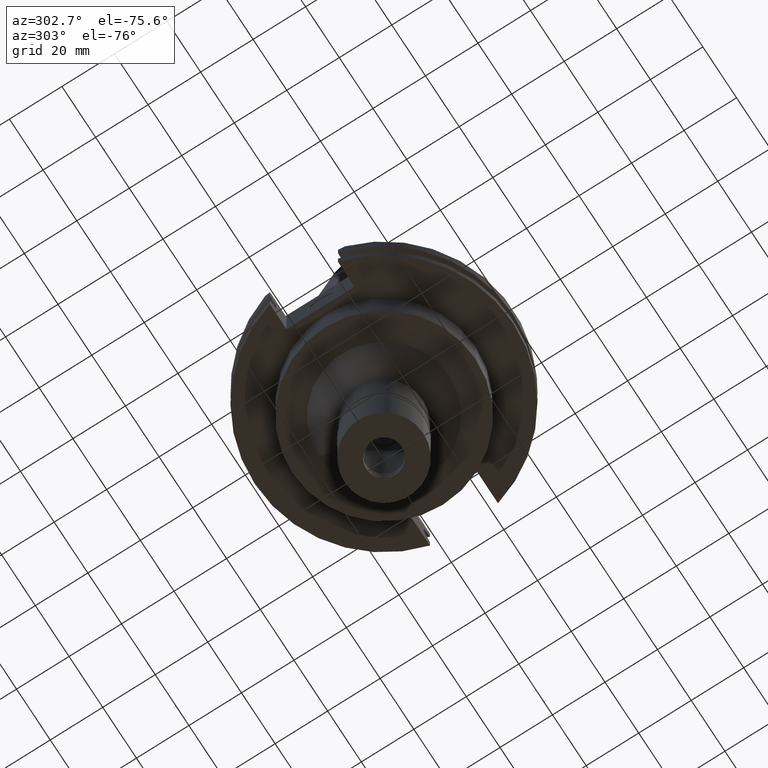
[diagram: clean part render]
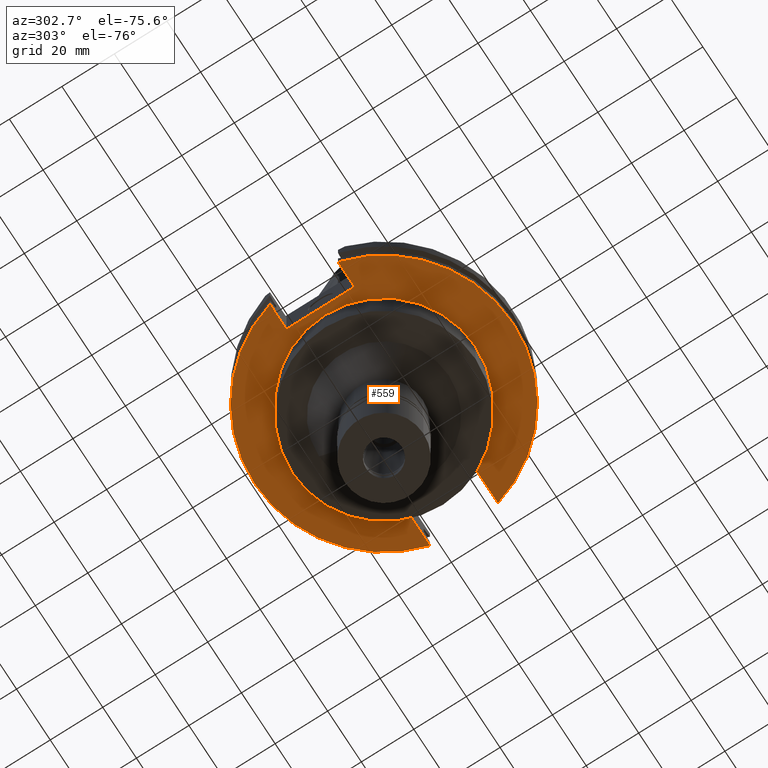
[diagram: same view with one face highlighted and labeled with its STEP entity id]
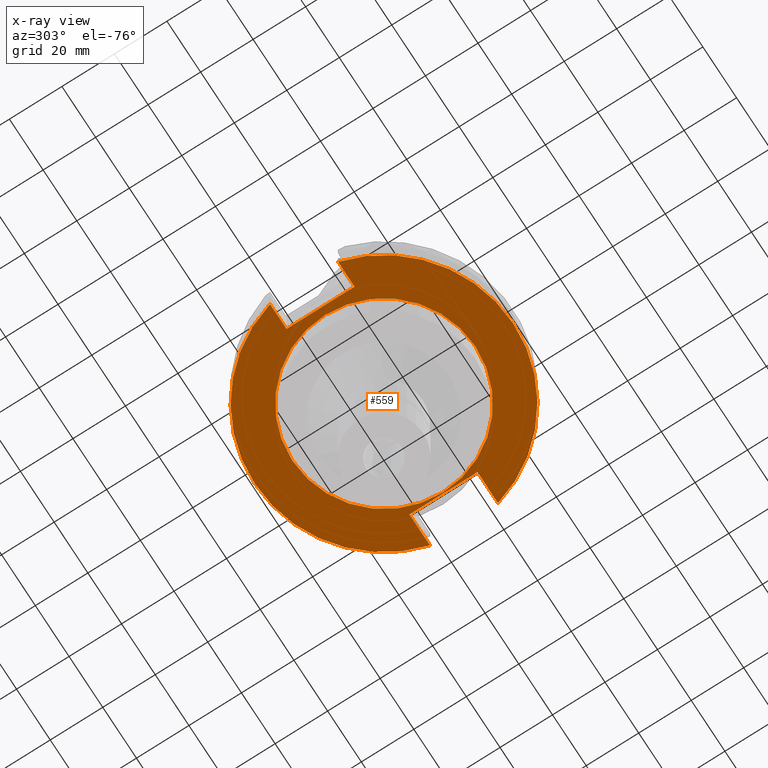
[diagram: x-ray of the same camera — body ghosted, the highlighted face saturated]
A machine part, auxiliary view. The second image highlights one B-rep face of the part: STEP entity #559.
The next image is the same camera in x-ray: the body ghosted, the highlighted face saturated — about 0% of this face is hidden behind the body in this view.
In plain terms, the highlighted planar face has unit normal (0, 0, -1).
Its self-contained STEP definition (entity closure, byte-faithful):
#4 = AXIS2_PLACEMENT_3D ( 'NONE', #2580, #527, #2837 ) ;
#47 = VERTEX_POINT ( 'NONE', #72 ) ;
#72 = CARTESIAN_POINT ( 'NONE',  ( -37.67999999999999972, -12.95500000000000007, -19.05000000000000071 ) ) ;
#91 = DIRECTION ( 'NONE',  ( 0.0000000000000000000, 0.0000000000000000000, 1.000000000000000000 ) ) ;
#104 = ORIENTED_EDGE ( 'NONE', *, *, #950, .F. ) ;
#116 = DIRECTION ( 'NONE',  ( 0.0000000000000000000, -1.000000000000000000, 0.0000000000000000000 ) ) ;
#148 = EDGE_CURVE ( 'NONE', #3276, #2465, #1308, .T. ) ;
#183 = DIRECTION ( 'NONE',  ( 0.0000000000000000000, 1.000000000000000000, 0.0000000000000000000 ) ) ;
#218 = ORIENTED_EDGE ( 'NONE', *, *, #270, .T. ) ;
#270 = EDGE_CURVE ( 'NONE', #2604, #3022, #947, .T. ) ;
#332 = ORIENTED_EDGE ( 'NONE', *, *, #148, .F. ) ;
#335 = ORIENTED_EDGE ( 'NONE', *, *, #2107, .F. ) ;
#366 = EDGE_CURVE ( 'NONE', #47, #3058, #1005, .T. ) ;
#379 = EDGE_CURVE ( 'NONE', #1768, #1763, #1083, .T. ) ;
#414 = VECTOR ( 'NONE', #3038, 1000.000000000000000 ) ;
#425 = DIRECTION ( 'NONE',  ( 0.0000000000000000000, -1.000000000000000000, 0.0000000000000000000 ) ) ;
#527 = DIRECTION ( 'NONE',  ( 0.0000000000000000000, 0.0000000000000000000, -1.000000000000000000 ) ) ;
#528 = CARTESIAN_POINT ( 'NONE',  ( 35.27000000000000313, -12.95500000000000007, -19.05000000000000071 ) ) ;
#559 = ADVANCED_FACE ( 'NONE', ( #2114, #2567 ), #1843, .T. ) ;
#588 = ORIENTED_EDGE ( 'NONE', *, *, #3147, .F. ) ;
#602 = CARTESIAN_POINT ( 'NONE',  ( -47.47671146204000081, -12.95500000000000007, -19.05000000000000071 ) ) ;
#656 = VECTOR ( 'NONE', #183, 1000.000000000000000 ) ;
#727 = CARTESIAN_POINT ( 'NONE',  ( -47.47671146204000081, 12.95500000000000007, -19.05000000000000071 ) ) ;
#793 = VECTOR ( 'NONE', #3091, 1000.000000000000000 ) ;
#799 = EDGE_LOOP ( 'NONE', ( #2368, #104, #588, #218, #1829, #332, #335, #2924 ) ) ;
#849 = CARTESIAN_POINT ( 'NONE',  ( 0.0000000000000000000, 2.579412320703999880E-14, -19.05000000000000071 ) ) ;
#883 = ORIENTED_EDGE ( 'NONE', *, *, #379, .F. ) ;
#947 = LINE ( 'NONE', #2455, #1090 ) ;
#950 = EDGE_CURVE ( 'NONE', #1891, #1399, #2985, .T. ) ;
#958 = DIRECTION ( 'NONE',  ( 0.0000000000000000000, 0.0000000000000000000, 1.000000000000000000 ) ) ;
#986 = AXIS2_PLACEMENT_3D ( 'NONE', #1735, #994, #1038 ) ;
#994 = DIRECTION ( 'NONE',  ( 0.0000000000000000000, 0.0000000000000000000, -1.000000000000000000 ) ) ;
#1005 = LINE ( 'NONE', #2785, #656 ) ;
#1038 = DIRECTION ( 'NONE',  ( 0.0000000000000000000, 1.000000000000000000, 0.0000000000000000000 ) ) ;
#1073 = CARTESIAN_POINT ( 'NONE',  ( 0.0000000000000000000, 2.579412320703999880E-14, -19.05000000000000071 ) ) ;
#1083 = CIRCLE ( 'NONE', #986, 34.92499999999999716 ) ;
#1090 = VECTOR ( 'NONE', #425, 1000.000000000000000 ) ;
#1242 = CIRCLE ( 'NONE', #2136, 34.92499999999999716 ) ;
#1257 = AXIS2_PLACEMENT_3D ( 'NONE', #1073, #91, #1338 ) ;
#1307 = DIRECTION ( 'NONE',  ( -1.000000000000000000, 1.813217472294999948E-14, 0.0000000000000000000 ) ) ;
#1308 = CIRCLE ( 'NONE', #1257, 49.21249999999999858 ) ;
#1338 = DIRECTION ( 'NONE',  ( 0.0000000000000000000, -1.000000000000000000, 0.0000000000000000000 ) ) ;
#1399 = VERTEX_POINT ( 'NONE', #727 ) ;
#1475 = CARTESIAN_POINT ( 'NONE',  ( 0.0000000000000000000, 2.579412320703999880E-14, -19.05000000000000071 ) ) ;
#1534 = CARTESIAN_POINT ( 'NONE',  ( 35.27000000000000313, 12.95500000000000007, -19.05000000000000071 ) ) ;
#1634 = CARTESIAN_POINT ( 'NONE',  ( -37.67999999999999972, -12.95500000000000007, -19.05000000000000071 ) ) ;
#1649 = LINE ( 'NONE', #3121, #2932 ) ;
#1678 = CARTESIAN_POINT ( 'NONE',  ( 35.27000000000000313, -12.95500000000000007, -19.05000000000000071 ) ) ;
#1686 = CARTESIAN_POINT ( 'NONE',  ( 47.47671146204000081, 12.95500000000000007, -19.05000000000000071 ) ) ;
#1735 = CARTESIAN_POINT ( 'NONE',  ( 0.0000000000000000000, 2.579412320703999880E-14, -19.05000000000000071 ) ) ;
#1763 = VERTEX_POINT ( 'NONE', #2381 ) ;
#1765 = VECTOR ( 'NONE', #1999, 1000.000000000000000 ) ;
#1766 = LINE ( 'NONE', #528, #1765 ) ;
#1768 = VERTEX_POINT ( 'NONE', #2912 ) ;
#1778 = DIRECTION ( 'NONE',  ( 0.0000000000000000000, 1.000000000000000000, 0.0000000000000000000 ) ) ;
#1789 = ORIENTED_EDGE ( 'NONE', *, *, #2816, .F. ) ;
#1829 = ORIENTED_EDGE ( 'NONE', *, *, #1990, .T. ) ;
#1843 = PLANE ( 'NONE',  #4 ) ;
#1891 = VERTEX_POINT ( 'NONE', #1686 ) ;
#1990 = EDGE_CURVE ( 'NONE', #3022, #2465, #1766, .T. ) ;
#1999 = DIRECTION ( 'NONE',  ( 1.000000000000000000, -1.411572756165000194E-14, 0.0000000000000000000 ) ) ;
#2018 = CARTESIAN_POINT ( 'NONE',  ( 35.27000000000000313, 12.95500000000000007, -19.05000000000000071 ) ) ;
#2019 = AXIS2_PLACEMENT_3D ( 'NONE', #1475, #958, #1778 ) ;
#2098 = LINE ( 'NONE', #1634, #793 ) ;
#2107 = EDGE_CURVE ( 'NONE', #47, #3276, #2098, .T. ) ;
#2114 = FACE_OUTER_BOUND ( 'NONE', #799, .T. ) ;
#2118 = EDGE_CURVE ( 'NONE', #3058, #1399, #1649, .T. ) ;
#2136 = AXIS2_PLACEMENT_3D ( 'NONE', #849, #2411, #116 ) ;
#2149 = CARTESIAN_POINT ( 'NONE',  ( 47.47671146204000081, -12.95500000000000007, -19.05000000000000071 ) ) ;
#2368 = ORIENTED_EDGE ( 'NONE', *, *, #2118, .T. ) ;
#2381 = CARTESIAN_POINT ( 'NONE',  ( 0.0000000000000000000, -34.92499999999999716, -19.05000000000000071 ) ) ;
#2411 = DIRECTION ( 'NONE',  ( 0.0000000000000000000, 0.0000000000000000000, -1.000000000000000000 ) ) ;
#2455 = CARTESIAN_POINT ( 'NONE',  ( 35.27000000000000313, 12.95500000000000007, -19.05000000000000071 ) ) ;
#2465 = VERTEX_POINT ( 'NONE', #2149 ) ;
#2567 = FACE_BOUND ( 'NONE', #2939, .T. ) ;
#2580 = CARTESIAN_POINT ( 'NONE',  ( 0.0000000000000000000, 0.0000000000000000000, -19.05000000000000071 ) ) ;
#2604 = VERTEX_POINT ( 'NONE', #1534 ) ;
#2785 = CARTESIAN_POINT ( 'NONE',  ( -37.67999999999999972, -12.95500000000000007, -19.05000000000000071 ) ) ;
#2816 = EDGE_CURVE ( 'NONE', #1763, #1768, #1242, .T. ) ;
#2837 = DIRECTION ( 'NONE',  ( 0.0000000000000000000, -1.000000000000000000, 0.0000000000000000000 ) ) ;
#2912 = CARTESIAN_POINT ( 'NONE',  ( 0.0000000000000000000, 34.92499999999999716, -19.05000000000000071 ) ) ;
#2924 = ORIENTED_EDGE ( 'NONE', *, *, #366, .T. ) ;
#2932 = VECTOR ( 'NONE', #1307, 1000.000000000000000 ) ;
#2938 = CARTESIAN_POINT ( 'NONE',  ( -37.67999999999999972, 12.95500000000000007, -19.05000000000000071 ) ) ;
#2939 = EDGE_LOOP ( 'NONE', ( #883, #1789 ) ) ;
#2985 = CIRCLE ( 'NONE', #2019, 49.21249999999999858 ) ;
#3022 = VERTEX_POINT ( 'NONE', #1678 ) ;
#3038 = DIRECTION ( 'NONE',  ( 1.000000000000000000, 1.455229645530999953E-14, 0.0000000000000000000 ) ) ;
#3058 = VERTEX_POINT ( 'NONE', #2938 ) ;
#3081 = LINE ( 'NONE', #2018, #414 ) ;
#3091 = DIRECTION ( 'NONE',  ( -1.000000000000000000, -1.795085297572000011E-14, 0.0000000000000000000 ) ) ;
#3121 = CARTESIAN_POINT ( 'NONE',  ( -37.67999999999999972, 12.95500000000000007, -19.05000000000000071 ) ) ;
#3147 = EDGE_CURVE ( 'NONE', #2604, #1891, #3081, .T. ) ;
#3276 = VERTEX_POINT ( 'NONE', #602 ) ;